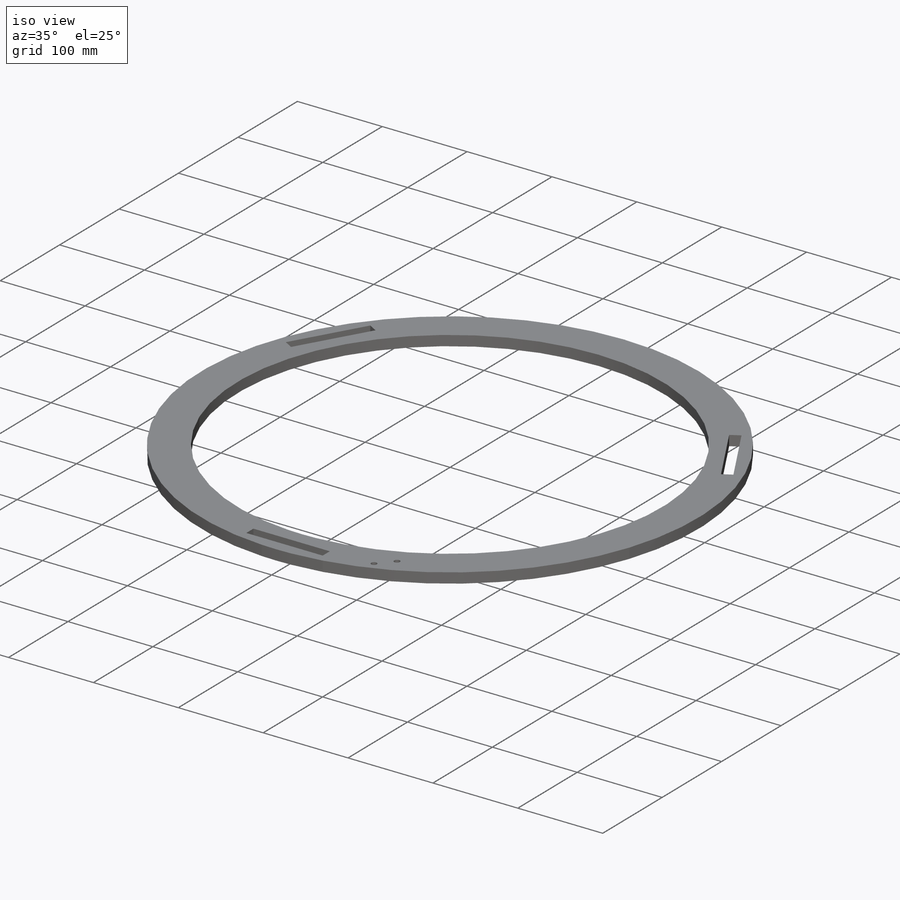
[diagram: iso view]
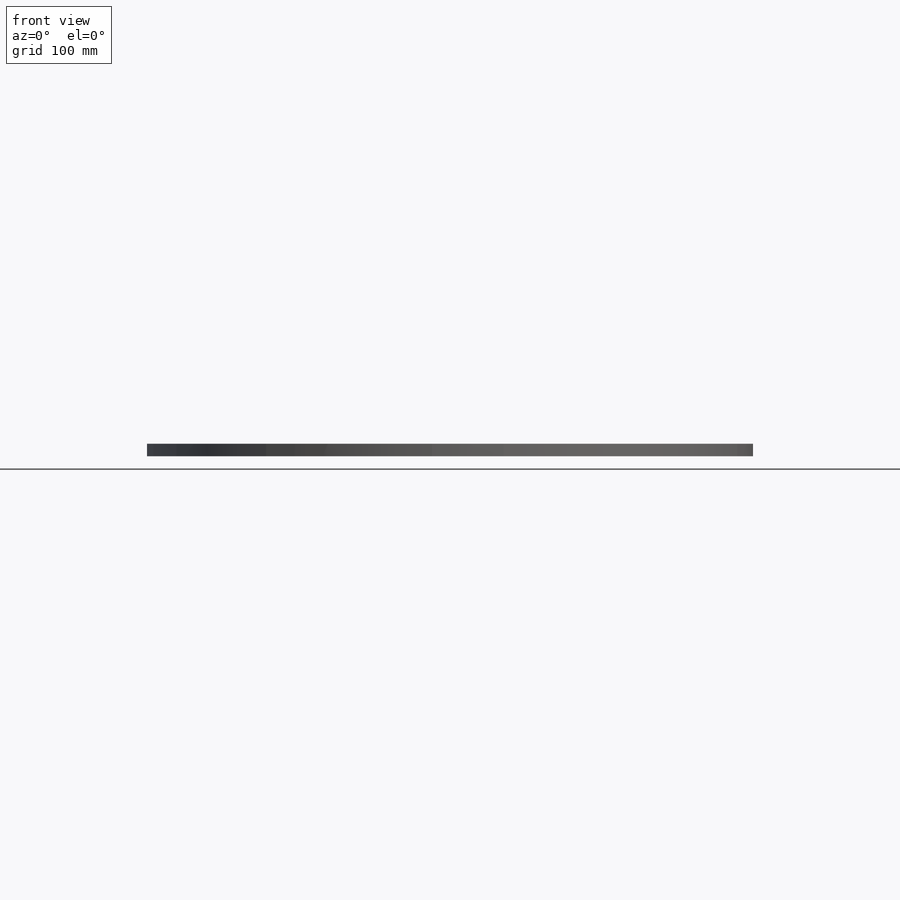
[diagram: front view]
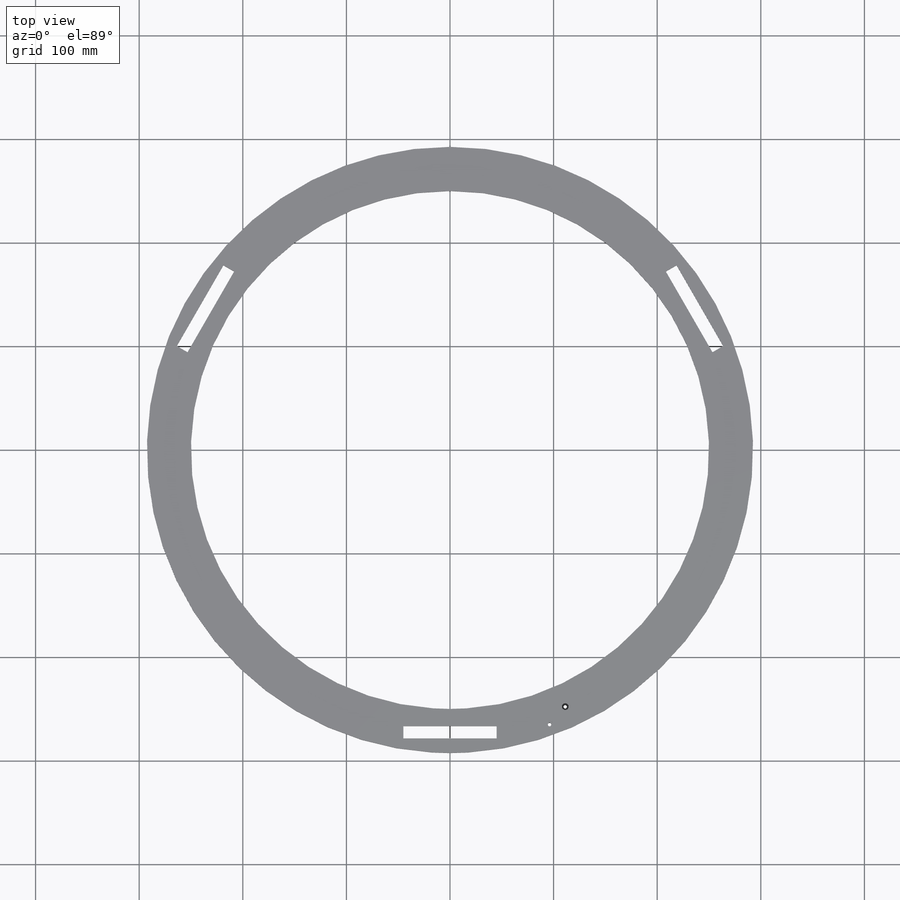
[diagram: top view]
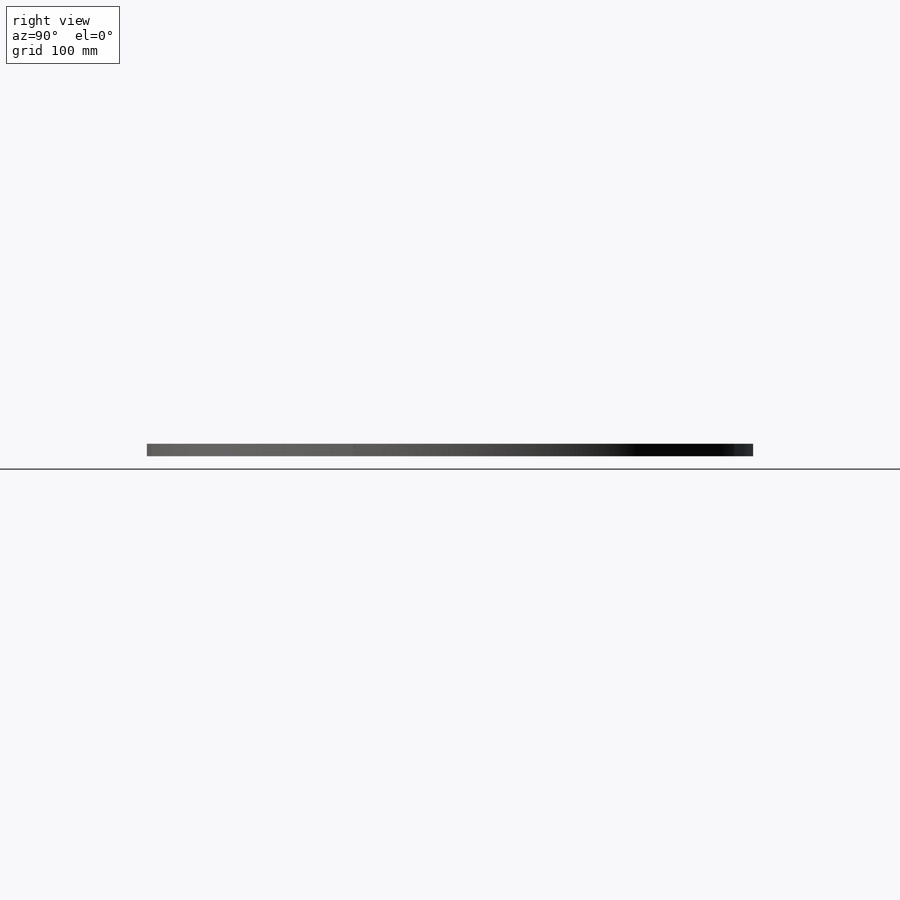
[diagram: right view]
SOLIDWORKS PART (.sldprt)
format: sldprt  version: not decoded by parser v0  size: 196,608 bytes
history: native  units: mm
features: sketch x4, material x1, extrude x1, cut_extrude x1, pattern_circular x1, hole x1 (+12 scaffold rows collapsed)
feature tree (21):
  scaffold x12  (default folders/planes/origin — collapsed)
  material  "Material <not specified>"
  sketch  "Sketch1"  dims[D1=500.0mm D2=585.0mm]
  extrude  "Boss-Extrude1"  Depth=12mm
  sketch  "Sketch2"  dims[c1.D4=582.0mm c1.D1=12.0mm c1.D2=90.0mm c1.D3=278.5mm c2.D4=260.0mm c2.D3=12.5mm]
  cut_extrude  "Cut-Extrude1"  Depth=12mm
  pattern_circular  "CirPattern1"  Count=3 Angle=360deg
  hole  "CBORE for M3 SHCS1"  Diameter=3.4mm Depth=12mm
  sketch  "Sketch5"
  sketch  "Sketch6"  dims[Thru Hole Dia.=3.4mm Thru Hole Depth=12.0mm C'Bore Dia.=6.5mm C'Bore Depth=3.0mm]
decode coverage: 7 of 8 modeling features carry decoded parameters
note: suppression state not decoded; provenance and decode notes live in map.json
